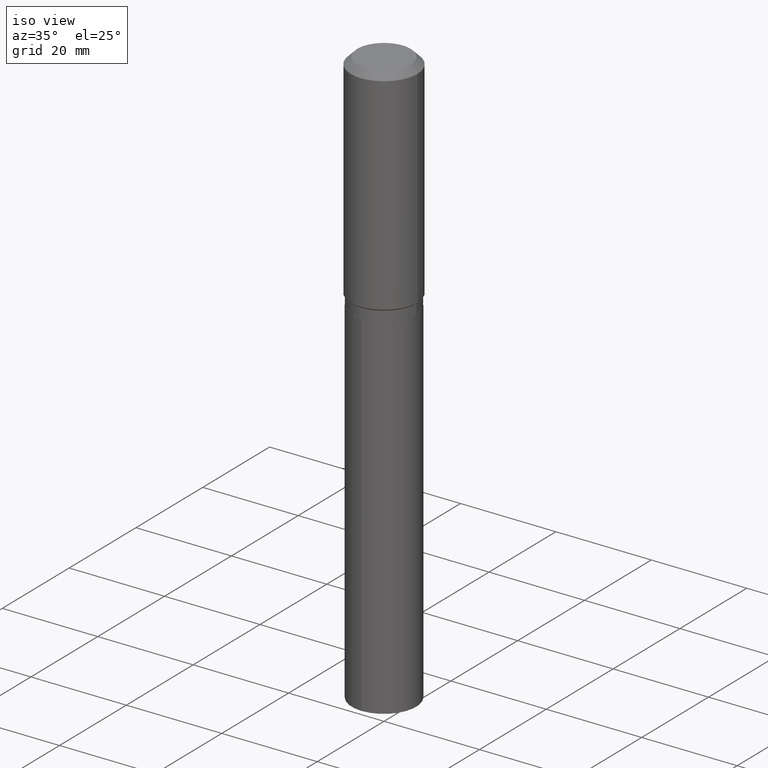
[diagram: clean part render]
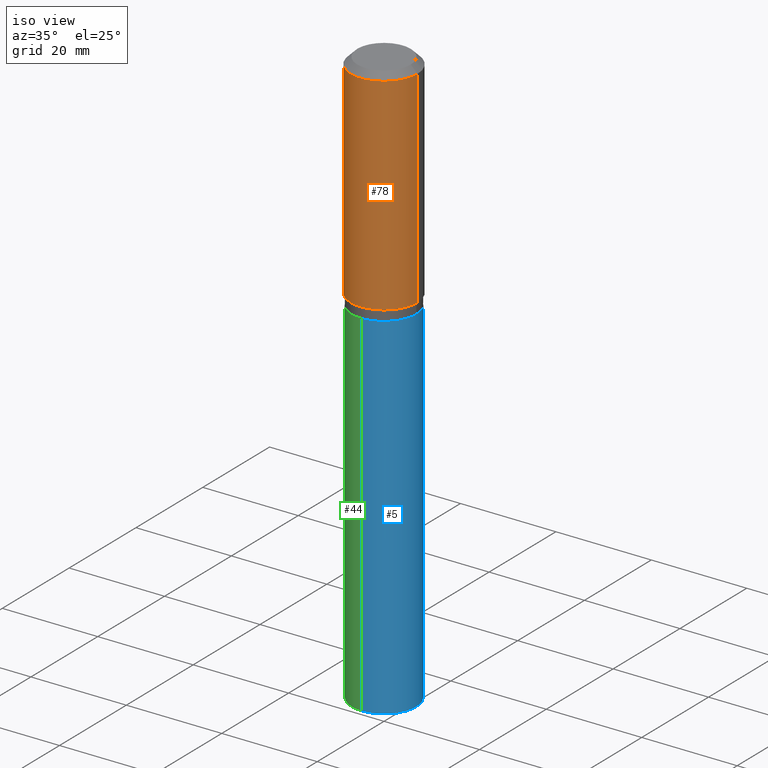
[diagram: same view with three faces highlighted in distinct colors, each labeled with its STEP entity id]
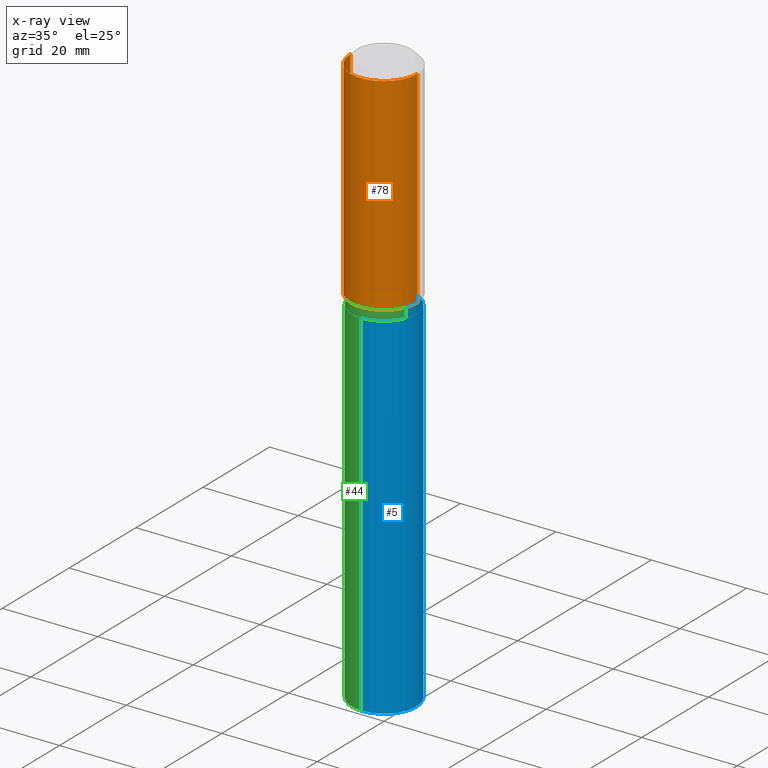
[diagram: x-ray of the same camera — body ghosted, the three highlighted faces saturated]
A machine part, iso view with three faces highlighted in distinct colors.
The next image is the same camera in x-ray (body ghosted, the three faces saturated) — at least one of them is partly hidden behind the body in this view.
Their STEP definitions:

[orange] entity #78 — the highlighted cylindrical surface (partial cylindrical patch) has radius 7.0002 mm, axis along (-0, 0, 1).
#16 = DIRECTION ( 'NONE',  ( 1.000000000000000000, -6.982962677686267499E-15, 4.876176775795935793E-29 ) ) ;
#27 = EDGE_CURVE ( 'NONE', #310, #473, #461, .T. ) ;
#36 = VERTEX_POINT ( 'NONE', #233 ) ;
#61 = LINE ( 'NONE', #97, #346 ) ;
#66 = AXIS2_PLACEMENT_3D ( 'NONE', #212, #370, #16 ) ;
#78 = ADVANCED_FACE ( 'NONE', ( #332 ), #179, .T. ) ;
#97 = CARTESIAN_POINT ( 'NONE',  ( 0.2756000000000001227, -1.924504513970336137E-15, 1.343874319409360548E-29 ) ) ;
#113 = CARTESIAN_POINT ( 'NONE',  ( 4.305125559848622317E-29, -6.146578322966412912E-15, -1.760449999999999182 ) ) ;
#133 = EDGE_LOOP ( 'NONE', ( #439, #421, #262, #406 ) ) ;
#178 = EDGE_CURVE ( 'NONE', #473, #349, #61, .T. ) ;
#179 = CYLINDRICAL_SURFACE ( 'NONE', #66, 0.2756000000000001227 ) ;
#187 = CARTESIAN_POINT ( 'NONE',  ( -0.2756000000000002337, -4.188322543211574745E-15, -1.760449999999999182 ) ) ;
#196 = EDGE_CURVE ( 'NONE', #36, #349, #467, .T. ) ;
#198 = LINE ( 'NONE', #373, #270 ) ;
#212 = CARTESIAN_POINT ( 'NONE',  ( 0.000000000000000000, 0.000000000000000000, 0.000000000000000000 ) ) ;
#223 = DIRECTION ( 'NONE',  ( -2.445468806185136877E-29, 3.491481338843145188E-15, 1.000000000000000000 ) ) ;
#233 = CARTESIAN_POINT ( 'NONE',  ( -0.2756000000000000116, -1.211258607426886733E-15, -0.05512000000000035621 ) ) ;
#247 = CARTESIAN_POINT ( 'NONE',  ( 1.347942405969256063E-30, -1.924504513970354330E-16, -0.05512000000000035621 ) ) ;
#250 = AXIS2_PLACEMENT_3D ( 'NONE', #113, #479, #259 ) ;
#259 = DIRECTION ( 'NONE',  ( 1.000000000000000000, -6.982962677686267499E-15, 0.000000000000000000 ) ) ;
#262 = ORIENTED_EDGE ( 'NONE', *, *, #178, .T. ) ;
#270 = VECTOR ( 'NONE', #340, 39.37007874015748143 ) ;
#290 = CARTESIAN_POINT ( 'NONE',  ( 0.2756000000000002337, -8.071082836936750233E-15, -1.760449999999999182 ) ) ;
#303 = AXIS2_PLACEMENT_3D ( 'NONE', #247, #398, #321 ) ;
#309 = EDGE_CURVE ( 'NONE', #310, #36, #198, .T. ) ;
#310 = VERTEX_POINT ( 'NONE', #187 ) ;
#321 = DIRECTION ( 'NONE',  ( 1.000000000000000000, -6.982962677686265922E-15, 0.000000000000000000 ) ) ;
#332 = FACE_OUTER_BOUND ( 'NONE', #133, .T. ) ;
#340 = DIRECTION ( 'NONE',  ( -2.445468806185136877E-29, 3.491481338843145188E-15, 1.000000000000000000 ) ) ;
#346 = VECTOR ( 'NONE', #223, 39.37007874015748143 ) ;
#349 = VERTEX_POINT ( 'NONE', #415 ) ;
#370 = DIRECTION ( 'NONE',  ( -2.445468806185136597E-29, 3.491481338843145583E-15, 1.000000000000000000 ) ) ;
#373 = CARTESIAN_POINT ( 'NONE',  ( -0.2756000000000001227, 1.958255779754836984E-15, -1.355658510874252567E-29 ) ) ;
#398 = DIRECTION ( 'NONE',  ( -2.445468806185136597E-29, 3.491481338843145583E-15, 1.000000000000000000 ) ) ;
#406 = ORIENTED_EDGE ( 'NONE', *, *, #196, .F. ) ;
#415 = CARTESIAN_POINT ( 'NONE',  ( 0.2756000000000000116, -2.116954965367370658E-15, -0.05512000000000035621 ) ) ;
#421 = ORIENTED_EDGE ( 'NONE', *, *, #27, .T. ) ;
#439 = ORIENTED_EDGE ( 'NONE', *, *, #309, .F. ) ;
#461 = CIRCLE ( 'NONE', #250, 0.2756000000000002337 ) ;
#467 = CIRCLE ( 'NONE', #303, 0.2756000000000000116 ) ;
#473 = VERTEX_POINT ( 'NONE', #290 ) ;
#479 = DIRECTION ( 'NONE',  ( -2.445468806185136597E-29, 3.491481338843145583E-15, 1.000000000000000000 ) ) ;

[blue] entity #5 — the highlighted cylindrical surface (partial cylindrical patch) has radius 6.75 mm, axis along (-0, 0, 1).
#5 = ADVANCED_FACE ( 'NONE', ( #104 ), #301, .T. ) ;
#20 = LINE ( 'NONE', #94, #201 ) ;
#41 = ORIENTED_EDGE ( 'NONE', *, *, #234, .F. ) ;
#51 = EDGE_CURVE ( 'NONE', #302, #136, #20, .T. ) ;
#72 = DIRECTION ( 'NONE',  ( -6.982962677686266711E-15, -1.000000000000000000, 4.111906669673397387E-15 ) ) ;
#73 = EDGE_LOOP ( 'NONE', ( #366, #81, #420, #41 ) ) ;
#77 = VERTEX_POINT ( 'NONE', #395 ) ;
#81 = ORIENTED_EDGE ( 'NONE', *, *, #51, .T. ) ;
#83 = VECTOR ( 'NONE', #413, 39.37007874015748143 ) ;
#94 = CARTESIAN_POINT ( 'NONE',  ( 1.888267320282511506E-15, 0.2657499999999935469, -1.850500000000000700 ) ) ;
#104 = FACE_OUTER_BOUND ( 'NONE', #73, .T. ) ;
#105 = DIRECTION ( 'NONE',  ( -6.982962677686266711E-15, -1.000000000000000000, 3.083930002255048040E-15 ) ) ;
#114 = VERTEX_POINT ( 'NONE', #221 ) ;
#136 = VERTEX_POINT ( 'NONE', #282 ) ;
#137 = CARTESIAN_POINT ( 'NONE',  ( 4.525340025845595057E-29, -6.460986217529240299E-15, -1.850499999999999812 ) ) ;
#150 = CARTESIAN_POINT ( 'NONE',  ( 1.888267320282583292E-15, 0.2657499999999833884, -4.777318291105330239 ) ) ;
#184 = CIRCLE ( 'NONE', #311, 0.2657499999999999862 ) ;
#201 = VECTOR ( 'NONE', #441, 39.37007874015748143 ) ;
#217 = AXIS2_PLACEMENT_3D ( 'NONE', #267, #254, #338 ) ;
#221 = CARTESIAN_POINT ( 'NONE',  ( -1.855722331595079987E-15, -0.2657500000000064255, -1.850499999999998924 ) ) ;
#234 = EDGE_CURVE ( 'NONE', #77, #114, #443, .T. ) ;
#235 = AXIS2_PLACEMENT_3D ( 'NONE', #264, #417, #72 ) ;
#251 = CIRCLE ( 'NONE', #235, 0.2657499999999999862 ) ;
#254 = DIRECTION ( 'NONE',  ( -2.445248501264134508E-29, 3.491796828028997738E-15, 1.000000000000000000 ) ) ;
#264 = CARTESIAN_POINT ( 'NONE',  ( 1.168213806564335856E-28, -1.668084104262808193E-14, -4.777318291105329351 ) ) ;
#267 = CARTESIAN_POINT ( 'NONE',  ( 4.525340025845595057E-29, -6.460986217529240299E-15, -1.850499999999999812 ) ) ;
#275 = EDGE_CURVE ( 'NONE', #77, #302, #251, .T. ) ;
#282 = CARTESIAN_POINT ( 'NONE',  ( 1.888267320282583292E-15, 0.2657499999999935469, -1.850500000000000700 ) ) ;
#300 = CARTESIAN_POINT ( 'NONE',  ( -1.855722331595079987E-15, -0.2657500000000064255, -1.850499999999998924 ) ) ;
#301 = CYLINDRICAL_SURFACE ( 'NONE', #217, 0.2657499999999999862 ) ;
#302 = VERTEX_POINT ( 'NONE', #150 ) ;
#311 = AXIS2_PLACEMENT_3D ( 'NONE', #137, #440, #105 ) ;
#338 = DIRECTION ( 'NONE',  ( -6.982962677686266711E-15, -1.000000000000000000, 3.083930002255048040E-15 ) ) ;
#366 = ORIENTED_EDGE ( 'NONE', *, *, #275, .T. ) ;
#385 = EDGE_CURVE ( 'NONE', #114, #136, #184, .T. ) ;
#395 = CARTESIAN_POINT ( 'NONE',  ( -1.855722331595008595E-15, -0.2657500000000166951, -4.777318291105328463 ) ) ;
#413 = DIRECTION ( 'NONE',  ( -2.445248501264134508E-29, 3.491796828028997738E-15, 1.000000000000000000 ) ) ;
#417 = DIRECTION ( 'NONE',  ( -2.445248501264134508E-29, 3.491796828028997738E-15, 1.000000000000000000 ) ) ;
#420 = ORIENTED_EDGE ( 'NONE', *, *, #385, .F. ) ;
#440 = DIRECTION ( 'NONE',  ( -2.445248501264134508E-29, 3.491796828028997738E-15, 1.000000000000000000 ) ) ;
#441 = DIRECTION ( 'NONE',  ( -2.445248501264134508E-29, 3.491796828028997738E-15, 1.000000000000000000 ) ) ;
#443 = LINE ( 'NONE', #300, #83 ) ;

[green] entity #44 — the highlighted cylindrical surface (partial cylindrical patch) has radius 6.75 mm, axis along (-0, 0, 1).
#18 = EDGE_CURVE ( 'NONE', #136, #114, #165, .T. ) ;
#19 = ORIENTED_EDGE ( 'NONE', *, *, #51, .F. ) ;
#20 = LINE ( 'NONE', #94, #201 ) ;
#33 = AXIS2_PLACEMENT_3D ( 'NONE', #216, #361, #472 ) ;
#38 = ORIENTED_EDGE ( 'NONE', *, *, #234, .T. ) ;
#44 = ADVANCED_FACE ( 'NONE', ( #239 ), #448, .T. ) ;
#51 = EDGE_CURVE ( 'NONE', #302, #136, #20, .T. ) ;
#77 = VERTEX_POINT ( 'NONE', #395 ) ;
#83 = VECTOR ( 'NONE', #413, 39.37007874015748143 ) ;
#94 = CARTESIAN_POINT ( 'NONE',  ( 1.888267320282511506E-15, 0.2657499999999935469, -1.850500000000000700 ) ) ;
#99 = AXIS2_PLACEMENT_3D ( 'NONE', #199, #343, #327 ) ;
#111 = DIRECTION ( 'NONE',  ( -2.445248501264134508E-29, 3.491796828028997738E-15, 1.000000000000000000 ) ) ;
#114 = VERTEX_POINT ( 'NONE', #221 ) ;
#136 = VERTEX_POINT ( 'NONE', #282 ) ;
#150 = CARTESIAN_POINT ( 'NONE',  ( 1.888267320282583292E-15, 0.2657499999999833884, -4.777318291105330239 ) ) ;
#156 = EDGE_LOOP ( 'NONE', ( #19, #455, #38, #215 ) ) ;
#165 = CIRCLE ( 'NONE', #451, 0.2657499999999999862 ) ;
#199 = CARTESIAN_POINT ( 'NONE',  ( 4.525340025845595057E-29, -6.460986217529240299E-15, -1.850499999999999812 ) ) ;
#201 = VECTOR ( 'NONE', #441, 39.37007874015748143 ) ;
#204 = EDGE_CURVE ( 'NONE', #302, #77, #354, .T. ) ;
#215 = ORIENTED_EDGE ( 'NONE', *, *, #18, .F. ) ;
#216 = CARTESIAN_POINT ( 'NONE',  ( 1.168213806564335856E-28, -1.668084104262808193E-14, -4.777318291105329351 ) ) ;
#221 = CARTESIAN_POINT ( 'NONE',  ( -1.855722331595079987E-15, -0.2657500000000064255, -1.850499999999998924 ) ) ;
#234 = EDGE_CURVE ( 'NONE', #77, #114, #443, .T. ) ;
#239 = FACE_OUTER_BOUND ( 'NONE', #156, .T. ) ;
#282 = CARTESIAN_POINT ( 'NONE',  ( 1.888267320282583292E-15, 0.2657499999999935469, -1.850500000000000700 ) ) ;
#299 = CARTESIAN_POINT ( 'NONE',  ( 4.525340025845595057E-29, -6.460986217529240299E-15, -1.850499999999999812 ) ) ;
#300 = CARTESIAN_POINT ( 'NONE',  ( -1.855722331595079987E-15, -0.2657500000000064255, -1.850499999999998924 ) ) ;
#302 = VERTEX_POINT ( 'NONE', #150 ) ;
#327 = DIRECTION ( 'NONE',  ( -6.982962677686266711E-15, -1.000000000000000000, 3.083930002255048040E-15 ) ) ;
#330 = DIRECTION ( 'NONE',  ( -6.982962677686266711E-15, -1.000000000000000000, 3.083930002255048040E-15 ) ) ;
#343 = DIRECTION ( 'NONE',  ( -2.445248501264134508E-29, 3.491796828028997738E-15, 1.000000000000000000 ) ) ;
#354 = CIRCLE ( 'NONE', #33, 0.2657499999999999862 ) ;
#361 = DIRECTION ( 'NONE',  ( -2.445248501264134508E-29, 3.491796828028997738E-15, 1.000000000000000000 ) ) ;
#395 = CARTESIAN_POINT ( 'NONE',  ( -1.855722331595008595E-15, -0.2657500000000166951, -4.777318291105328463 ) ) ;
#413 = DIRECTION ( 'NONE',  ( -2.445248501264134508E-29, 3.491796828028997738E-15, 1.000000000000000000 ) ) ;
#441 = DIRECTION ( 'NONE',  ( -2.445248501264134508E-29, 3.491796828028997738E-15, 1.000000000000000000 ) ) ;
#443 = LINE ( 'NONE', #300, #83 ) ;
#448 = CYLINDRICAL_SURFACE ( 'NONE', #99, 0.2657499999999999862 ) ;
#451 = AXIS2_PLACEMENT_3D ( 'NONE', #299, #111, #330 ) ;
#455 = ORIENTED_EDGE ( 'NONE', *, *, #204, .T. ) ;
#472 = DIRECTION ( 'NONE',  ( -6.982962677686266711E-15, -1.000000000000000000, 4.111906669673397387E-15 ) ) ;